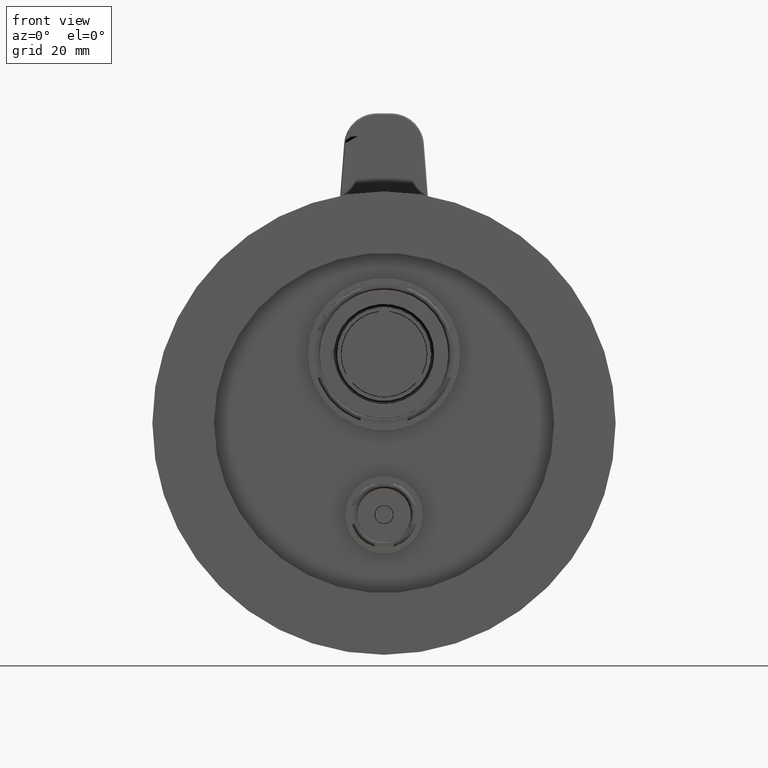
[diagram: clean part render]
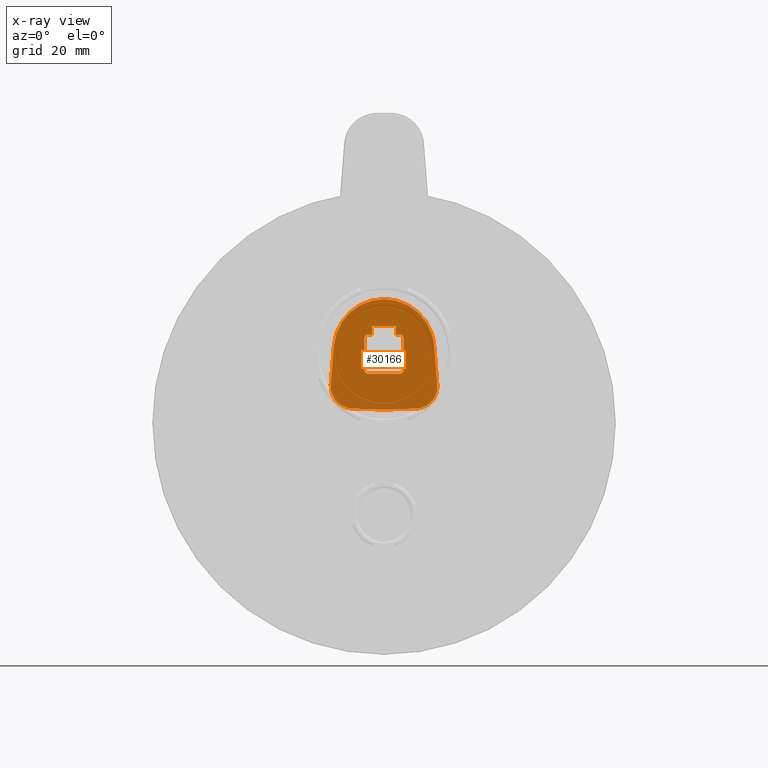
[diagram: x-ray — body ghosted, one internal face saturated and labeled with its STEP entity id]
A machine part, front view, then the same camera in x-ray: the body is ghosted and one INTERNAL B-rep face — a face not visible from any outside direction — is saturated and labeled: STEP entity #30166.
In plain terms, the highlighted planar face has unit normal (0, -1, 0).
Its self-contained STEP definition (entity closure, byte-faithful):
#9139=CARTESIAN_POINT('',(7.310777710361E0,1.104044430836E2,1.968899383270E1));
#9140=CARTESIAN_POINT('',(7.310777710361E0,1.104044430836E2,1.956401287081E1));
#9141=CARTESIAN_POINT('',(7.281243721034E0,1.104044430836E2,1.934358493634E1));
#9142=CARTESIAN_POINT('',(7.152301900542E0,1.104044430836E2,1.897260290926E1));
#9143=CARTESIAN_POINT('',(6.892654506212E0,1.104044430836E2,1.860734549411E1));
#9144=CARTESIAN_POINT('',(6.527397091069E0,1.104044430836E2,1.834769809978E1));
#9145=CARTESIAN_POINT('',(6.156415063983E0,1.104044430836E2,1.821875627929E1));
#9146=CARTESIAN_POINT('',(5.935987129521E0,1.104044430836E2,1.818922228997E1));
#9147=CARTESIAN_POINT('',(5.811006167626E0,1.104044430836E2,1.818922228997E1));
#9149=CARTESIAN_POINT('',(1.228528700637E1,1.104044430891E2,5.158062621633E0));
#9150=CARTESIAN_POINT('',(1.111652637017E1,1.104044430891E2,5.084922251829E0));
#9151=CARTESIAN_POINT('',(8.778221958985E0,1.104044430810E2,4.959541597257E0));
#9152=CARTESIAN_POINT('',(5.267715559833E0,1.104044430842E2,4.834114772629E0));
#9153=CARTESIAN_POINT('',(1.756270763691E0,1.104044430834E2,4.771414104394E0));
#9154=CARTESIAN_POINT('',(-1.756271187701E0,1.104044430835E2,4.771414108495E0));
#9155=CARTESIAN_POINT('',(-5.267715990117E0,1.104044430841E2,4.834114783746E0));
#9156=CARTESIAN_POINT('',(-8.778222418079E0,1.104044430817E2,4.959541618283E0));
#9157=CARTESIAN_POINT('',(-1.111652676881E1,1.104044430876E2,5.084922273515E0));
#9158=CARTESIAN_POINT('',(-1.228528744783E1,1.104044430876E2,5.158062648385E0));
#9160=CARTESIAN_POINT('',(-1.228528744783E1,1.104044430876E2,5.158062648385E0));
#9161=CARTESIAN_POINT('',(-1.241230562792E1,1.104044430876E2,5.166011373453E0));
#9162=CARTESIAN_POINT('',(-1.266568290888E1,1.104044430817E2,5.187839851992E0));
#9163=CARTESIAN_POINT('',(-1.304438886890E1,1.104044430841E2,5.238387145012E0));
#9164=CARTESIAN_POINT('',(-1.341989917635E1,1.104044430834E2,5.306500271857E0));
#9165=CARTESIAN_POINT('',(-1.379158573058E1,1.104044430836E2,5.392023908460E0));
#9166=CARTESIAN_POINT('',(-1.415935398350E1,1.104044430836E2,5.494973555194E0));
#9167=CARTESIAN_POINT('',(-1.452167511406E1,1.104044430836E2,5.614957944166E0));
#9168=CARTESIAN_POINT('',(-1.487762301793E1,1.104044430836E2,5.751654283054E0));
#9169=CARTESIAN_POINT('',(-1.522738558662E1,1.104044430836E2,5.905062603690E0));
#9170=CARTESIAN_POINT('',(-1.556963943877E1,1.104044430836E2,6.074594228108E0));
#9171=CARTESIAN_POINT('',(-1.590342152889E1,1.104044430836E2,6.259785125795E0));
#9172=CARTESIAN_POINT('',(-1.622883418596E1,1.104044430836E2,6.460856924411E0));
#9173=CARTESIAN_POINT('',(-1.654448814292E1,1.104044430836E2,6.677077581184E0));
#9174=CARTESIAN_POINT('',(-1.684930603982E1,1.104044430836E2,6.907601286624E0));
#9175=CARTESIAN_POINT('',(-1.714348518998E1,1.104044430836E2,7.152476146199E0));
#9176=CARTESIAN_POINT('',(-1.742592075289E1,1.104044430836E2,7.410814939538E0));
#9177=CARTESIAN_POINT('',(-1.769560147788E1,1.104044430836E2,7.681634382554E0));
#9178=CARTESIAN_POINT('',(-1.795259816174E1,1.104044430836E2,7.965128582167E0));
#9179=CARTESIAN_POINT('',(-1.819590043207E1,1.104044430836E2,8.260347445357E0));
#9180=CARTESIAN_POINT('',(-1.842458719108E1,1.104044430836E2,8.566033947454E0));
#9181=CARTESIAN_POINT('',(-1.863893640609E1,1.104044430836E2,8.882262612281E0));
#9182=CARTESIAN_POINT('',(-1.883843868560E1,1.104044430836E2,9.208155519336E0));
#9183=CARTESIAN_POINT('',(-1.902237410564E1,1.104044430836E2,9.542593504124E0));
#9184=CARTESIAN_POINT('',(-1.919071153739E1,1.104044430836E2,9.885869619192E0));
#9185=CARTESIAN_POINT('',(-1.934283676149E1,1.104044430836E2,1.023696664017E1));
#9186=CARTESIAN_POINT('',(-1.947813785256E1,1.104044430836E2,1.059433561146E1));
#9187=CARTESIAN_POINT('',(-1.959673170332E1,1.104044430836E2,1.095794926605E1));
#9188=CARTESIAN_POINT('',(-1.969836442170E1,1.104044430836E2,1.132698948311E1));
#9189=CARTESIAN_POINT('',(-1.978261762069E1,1.104044430836E2,1.169998689017E1));
#9190=CARTESIAN_POINT('',(-1.984938167545E1,1.104044430836E2,1.207696043523E1));
#9191=CARTESIAN_POINT('',(-1.989838486288E1,1.104044430836E2,1.245703663489E1));
#9192=CARTESIAN_POINT('',(-1.992945118858E1,1.104044430836E2,1.283848677676E1));
#9193=CARTESIAN_POINT('',(-1.994269554304E1,1.104044430835E2,1.322099097445E1));
#9194=CARTESIAN_POINT('',(-1.993806383588E1,1.104044430840E2,1.360390617575E1));
#9195=CARTESIAN_POINT('',(-1.992309393918E1,1.104044430827E2,1.385810403061E1));
#9196=CARTESIAN_POINT('',(-1.991263066313E1,1.104044430827E2,1.398504355017E1));
#9198=CARTESIAN_POINT('',(-1.991263066313E1,1.104044430827E2,1.398504355017E1));
#9199=CARTESIAN_POINT('',(-1.982431516623E1,1.104044430827E2,1.505647917734E1));
#9200=CARTESIAN_POINT('',(-1.964238861209E1,1.104044430840E2,1.727135600269E1));
#9201=CARTESIAN_POINT('',(-1.935611080226E1,1.104044430833E2,2.078274801571E1));
#9202=CARTESIAN_POINT('',(-1.905019099813E1,1.104044430841E2,2.456417531104E1));
#9203=CARTESIAN_POINT('',(-1.882915444659E1,1.104044430825E2,2.731914376067E1));
#9204=CARTESIAN_POINT('',(-1.871483231831E1,1.104044430825E2,2.875064391208E1));
#9206=CARTESIAN_POINT('',(-1.871483231831E1,1.104044430825E2,2.875064391208E1));
#9207=CARTESIAN_POINT('',(-1.869573724125E1,1.104044430825E2,2.898974552879E1));
#9208=CARTESIAN_POINT('',(-1.864843448158E1,1.104044430841E2,2.946685664676E1));
#9209=CARTESIAN_POINT('',(-1.855014784227E1,1.104044430834E2,3.017980870982E1));
#9210=CARTESIAN_POINT('',(-1.842474479949E1,1.104044430836E2,3.088837399452E1));
#9211=CARTESIAN_POINT('',(-1.827234986552E1,1.104044430836E2,3.159172587130E1));
#9212=CARTESIAN_POINT('',(-1.809322795357E1,1.104044430836E2,3.228846738399E1));
#9213=CARTESIAN_POINT('',(-1.788760107564E1,1.104044430836E2,3.297799171607E1));
#9214=CARTESIAN_POINT('',(-1.765584648953E1,1.104044430836E2,3.365905940699E1));
#9215=CARTESIAN_POINT('',(-1.739815100235E1,1.104044430836E2,3.433097680398E1));
#9216=CARTESIAN_POINT('',(-1.711510344711E1,1.104044430836E2,3.499215570239E1));
#9217=CARTESIAN_POINT('',(-1.680694482894E1,1.104044430836E2,3.564220779726E1));
#9218=CARTESIAN_POINT('',(-1.647433084520E1,1.104044430836E2,3.627976793348E1));
#9219=CARTESIAN_POINT('',(-1.611741945772E1,1.104044430836E2,3.690441298903E1));
#9220=CARTESIAN_POINT('',(-1.573710424099E1,1.104044430836E2,3.751455815456E1));
#9221=CARTESIAN_POINT('',(-1.533361753379E1,1.104044430836E2,3.810996931337E1));
#9222=CARTESIAN_POINT('',(-1.490791329139E1,1.104044430836E2,3.868924701380E1));
#9223=CARTESIAN_POINT('',(-1.446016444833E1,1.104044430836E2,3.925205371869E1));
#9224=CARTESIAN_POINT('',(-1.399165675868E1,1.104044430836E2,3.979678861683E1));
#9225=CARTESIAN_POINT('',(-1.350256739538E1,1.104044430836E2,4.032336890403E1));
#9226=CARTESIAN_POINT('',(-1.299399301303E1,1.104044430836E2,4.083061909416E1));
#9227=CARTESIAN_POINT('',(-1.246600022617E1,1.104044430836E2,4.131836362611E1));
#9228=CARTESIAN_POINT('',(-1.192006535454E1,1.104044430836E2,4.178525877244E1));
#9229=CARTESIAN_POINT('',(-1.135643490558E1,1.104044430836E2,4.223117957397E1));
#9230=CARTESIAN_POINT('',(-1.077663759558E1,1.104044430836E2,4.265492117915E1));
#9231=CARTESIAN_POINT('',(-1.018085705857E1,1.104044430836E2,4.305627603410E1));
#9232=CARTESIAN_POINT('',(-9.570741351314E0,1.104044430836E2,4.343417143115E1));
#9233=CARTESIAN_POINT('',(-8.946476147615E0,1.104044430836E2,4.378857254286E1));
#9234=CARTESIAN_POINT('',(-8.309414034E0,1.104044430836E2,4.411871190352E1));
#9235=CARTESIAN_POINT('',(-7.659684614861E0,1.104044430836E2,4.442444529864E1));
#9236=CARTESIAN_POINT('',(-6.999171276288E0,1.104044430836E2,4.470491780266E1));
#9237=CARTESIAN_POINT('',(-6.328325362533E0,1.104044430836E2,4.495999807999E1));
#9238=CARTESIAN_POINT('',(-5.648599021092E0,1.104044430836E2,4.518913224862E1));
#9239=CARTESIAN_POINT('',(-4.960322421675E0,1.104044430836E2,4.539213883046E1));
#9240=CARTESIAN_POINT('',(-4.265168291137E0,1.104044430836E2,4.556857413361E1));
#9241=CARTESIAN_POINT('',(-3.563728367710E0,1.104044430836E2,4.571834258773E1));
#9242=CARTESIAN_POINT('',(-2.857293301232E0,1.104044430836E2,4.584115927099E1));
#9243=CARTESIAN_POINT('',(-2.146407415210E0,1.104044430836E2,4.593685968562E1));
#9244=CARTESIAN_POINT('',(-1.432567896014E0,1.104044430836E2,4.600529148949E1));
#9245=CARTESIAN_POINT('',(-7.167446940555E-1,1.104044430836E2,
4.604640962900E1));
#9246=CARTESIAN_POINT('',(-6.440742626096E-6,1.104044430836E2,
4.606014104768E1));
#9247=CARTESIAN_POINT('',(7.167287600472E-1,1.104044430836E2,4.604641031793E1));
#9248=CARTESIAN_POINT('',(1.432552159625E0,1.104044430836E2,4.600529281251E1));
#9249=CARTESIAN_POINT('',(2.146390703411E0,1.104044430836E2,4.593686169417E1));
#9250=CARTESIAN_POINT('',(2.857280570310E0,1.104044430836E2,4.584116125341E1));
#9251=CARTESIAN_POINT('',(3.563716601265E0,1.104044430836E2,4.571834487088E1));
#9252=CARTESIAN_POINT('',(4.265159682842E0,1.104044430836E2,4.556857614731E1));
#9253=CARTESIAN_POINT('',(4.960313729394E0,1.104044430836E2,4.539214120849E1));
#9254=CARTESIAN_POINT('',(5.648592694791E0,1.104044430836E2,4.518913426831E1));
#9255=CARTESIAN_POINT('',(6.328319336613E0,1.104044430836E2,4.496000030611E1));
#9256=CARTESIAN_POINT('',(6.999166749469E0,1.104044430836E2,4.470491970092E1));
#9257=CARTESIAN_POINT('',(7.659679408295E0,1.104044430836E2,4.442444766127E1));
#9258=CARTESIAN_POINT('',(8.309409644337E0,1.104044430836E2,4.411871407032E1));
#9259=CARTESIAN_POINT('',(8.946472416287E0,1.104044430836E2,4.378857454116E1));
#9260=CARTESIAN_POINT('',(9.570738556552E0,1.104044430836E2,4.343417307284E1));
#9261=CARTESIAN_POINT('',(1.018085414877E1,1.104044430836E2,4.305627792137E1));
#9262=CARTESIAN_POINT('',(1.077663455460E1,1.104044430836E2,4.265492331547E1));
#9263=CARTESIAN_POINT('',(1.135643234479E1,1.104044430836E2,4.223118143739E1));
#9264=CARTESIAN_POINT('',(1.192006359880E1,1.104044430836E2,4.178526010717E1));
#9265=CARTESIAN_POINT('',(1.246599904418E1,1.104044430836E2,4.131836462638E1));
#9266=CARTESIAN_POINT('',(1.299399174430E1,1.104044430836E2,4.083062034694E1));
#9267=CARTESIAN_POINT('',(1.350256614281E1,1.104044430836E2,4.032337023452E1));
#9268=CARTESIAN_POINT('',(1.399165543995E1,1.104044430836E2,3.979679009832E1));
#9269=CARTESIAN_POINT('',(1.446016312656E1,1.104044430836E2,3.925205530415E1));
#9270=CARTESIAN_POINT('',(1.490791188115E1,1.104044430836E2,3.868924886930E1));
#9271=CARTESIAN_POINT('',(1.533361626249E1,1.104044430836E2,3.810997113535E1));
#9272=CARTESIAN_POINT('',(1.573710324007E1,1.104044430836E2,3.751455968804E1));
#9273=CARTESIAN_POINT('',(1.611741863839E1,1.104044430836E2,3.690441432468E1));
#9274=CARTESIAN_POINT('',(1.647433012483E1,1.104044430836E2,3.627976931401E1));
#9275=CARTESIAN_POINT('',(1.680694402183E1,1.104044430836E2,3.564220959566E1));
#9276=CARTESIAN_POINT('',(1.711510258714E1,1.104044430836E2,3.499215776843E1));
#9277=CARTESIAN_POINT('',(1.739815007640E1,1.104044430836E2,3.433097910519E1));
#9278=CARTESIAN_POINT('',(1.765584580513E1,1.104044430836E2,3.365906125290E1));
#9279=CARTESIAN_POINT('',(1.788760050222E1,1.104044430836E2,3.297799349795E1));
#9280=CARTESIAN_POINT('',(1.809322762521E1,1.104044430836E2,3.228846857839E1));
#9281=CARTESIAN_POINT('',(1.827234957891E1,1.104044430836E2,3.159172711939E1));
#9282=CARTESIAN_POINT('',(1.842474476345E1,1.104044430836E2,3.088837421121E1));
#9283=CARTESIAN_POINT('',(1.855014782499E1,1.104044430834E2,3.017980880681E1));
#9284=CARTESIAN_POINT('',(1.864843452347E1,1.104044430841E2,2.946685630424E1));
#9285=CARTESIAN_POINT('',(1.869573725449E1,1.104044430825E2,2.898974537112E1));
#9286=CARTESIAN_POINT('',(1.871483231870E1,1.104044430825E2,2.875064391531E1));
#9288=CARTESIAN_POINT('',(1.871483231870E1,1.104044430825E2,2.875064391531E1));
#9289=CARTESIAN_POINT('',(1.882915447913E1,1.104044430825E2,2.731914336138E1));
#9290=CARTESIAN_POINT('',(1.905019109346E1,1.104044430841E2,2.456417413288E1));
#9291=CARTESIAN_POINT('',(1.935611098756E1,1.104044430834E2,2.078274573881E1));
#9292=CARTESIAN_POINT('',(1.964238888937E1,1.104044430838E2,1.727135262041E1));
#9293=CARTESIAN_POINT('',(1.982431544255E1,1.104044430833E2,1.505647582538E1));
#9294=CARTESIAN_POINT('',(1.991263096162E1,1.104044430833E2,1.398503993734E1));
#9296=CARTESIAN_POINT('',(1.991263096162E1,1.104044430833E2,1.398503993734E1));
#9297=CARTESIAN_POINT('',(1.992309805115E1,1.104044430833E2,1.385805415405E1));
#9298=CARTESIAN_POINT('',(1.993807880621E1,1.104044430837E2,1.360380126939E1));
#9299=CARTESIAN_POINT('',(1.994271610270E1,1.104044430835E2,1.322087761902E1));
#9300=CARTESIAN_POINT('',(1.992947045462E1,1.104044430836E2,1.283855684519E1));
#9301=CARTESIAN_POINT('',(1.989834902256E1,1.104044430836E2,1.245697561401E1));
#9302=CARTESIAN_POINT('',(1.984933369042E1,1.104044430836E2,1.207706626117E1));
#9303=CARTESIAN_POINT('',(1.978268948959E1,1.104044430836E2,1.170053223887E1));
#9304=CARTESIAN_POINT('',(1.969849348984E1,1.104044430836E2,1.132733098611E1));
#9305=CARTESIAN_POINT('',(1.959697286621E1,1.104044430836E2,1.095845758472E1));
#9306=CARTESIAN_POINT('',(1.947849017664E1,1.104044430836E2,1.059520151654E1));
#9307=CARTESIAN_POINT('',(1.934295772889E1,1.104044430836E2,1.023740815561E1));
#9308=CARTESIAN_POINT('',(1.919085986073E1,1.104044430836E2,9.886444847115E0));
#9309=CARTESIAN_POINT('',(1.902273692483E1,1.104044430836E2,9.543423789454E0));
#9310=CARTESIAN_POINT('',(1.883858351646E1,1.104044430836E2,9.208248255270E0));
#9311=CARTESIAN_POINT('',(1.863913847914E1,1.104044430836E2,8.882297909284E0));
#9312=CARTESIAN_POINT('',(1.842483254977E1,1.104044430836E2,8.566291328444E0));
#9313=CARTESIAN_POINT('',(1.819567522409E1,1.104044430836E2,8.260208931770E0));
#9314=CARTESIAN_POINT('',(1.795260708417E1,1.104044430836E2,7.965317798659E0));
#9315=CARTESIAN_POINT('',(1.769577881821E1,1.104044430836E2,7.681848628730E0));
#9316=CARTESIAN_POINT('',(1.742552465609E1,1.104044430836E2,7.410344408970E0));
#9317=CARTESIAN_POINT('',(1.714316637325E1,1.104044430836E2,7.152083956797E0));
#9318=CARTESIAN_POINT('',(1.684886480496E1,1.104044430836E2,6.907147842056E0));
#9319=CARTESIAN_POINT('',(1.654332799621E1,1.104044430836E2,6.676272663025E0));
#9320=CARTESIAN_POINT('',(1.622793208192E1,1.104044430836E2,6.460406385659E0));
#9321=CARTESIAN_POINT('',(1.590266873100E1,1.104044430836E2,6.259428835878E0));
#9322=CARTESIAN_POINT('',(1.556856076588E1,1.104044430836E2,6.073983681486E0));
#9323=CARTESIAN_POINT('',(1.522673928218E1,1.104044430836E2,5.904671452826E0));
#9324=CARTESIAN_POINT('',(1.487706358979E1,1.104044430836E2,5.751375491204E0));
#9325=CARTESIAN_POINT('',(1.452086310943E1,1.104044430836E2,5.614681949062E0));
#9326=CARTESIAN_POINT('',(1.415906313941E1,1.104044430836E2,5.494949702174E0));
#9327=CARTESIAN_POINT('',(1.379159628238E1,1.104044430836E2,5.392085500434E0));
#9328=CARTESIAN_POINT('',(1.341994658011E1,1.104044430834E2,5.306506560498E0));
#9329=CARTESIAN_POINT('',(1.304475169541E1,1.104044430843E2,5.238412390524E0));
#9330=CARTESIAN_POINT('',(1.266603136223E1,1.104044430810E2,5.187858595443E0));
#9331=CARTESIAN_POINT('',(1.241245474072E1,1.104044430891E2,5.166020705460E0));
#9332=CARTESIAN_POINT('',(1.228528700637E1,1.104044430891E2,5.158062621633E0));
#9334=DIRECTION('',(1.E0,0.E0,0.E0));
#9335=VECTOR('',#9334,9.E0);
#9336=CARTESIAN_POINT('',(-4.499999999673E0,1.104044430836E2,3.6E1));
#9337=LINE('',#9336,#9335);
#9338=DIRECTION('',(0.E0,0.E0,1.E0));
#9339=VECTOR('',#9338,3.189222289966E0);
#9340=CARTESIAN_POINT('',(-4.499999999673E0,1.104044430836E2,3.281077771003E1));
#9341=LINE('',#9340,#9339);
#9342=DIRECTION('',(0.E0,0.E0,-1.E0));
#9343=VECTOR('',#9342,1.162201233460E1);
#9344=CARTESIAN_POINT('',(7.310777710361E0,1.104044430836E2,3.131100616730E1));
#9345=LINE('',#9344,#9343);
#9346=DIRECTION('',(0.E0,0.E0,1.E0));
#9347=VECTOR('',#9346,3.189222289966E0);
#9348=CARTESIAN_POINT('',(4.500000000327E0,1.104044430836E2,3.281077771003E1));
#9349=LINE('',#9348,#9347);
#11548=CARTESIAN_POINT('',(-1.991263066313E1,1.104044430827E2,
1.398504355017E1));
#11568=CARTESIAN_POINT('',(1.991263096162E1,1.104044430833E2,1.398503993734E1));
#11750=DIRECTION('',(1.E0,0.E0,0.E0));
#11751=VECTOR('',#11750,1.311006167300E0);
#11752=CARTESIAN_POINT('',(4.500000000327E0,1.104044430836E2,3.281077771003E1));
#11753=LINE('',#11752,#11751);
#11762=DIRECTION('',(1.E0,-1.083965512113E-14,0.E0));
#11763=VECTOR('',#11762,1.311006167300E0);
#11764=CARTESIAN_POINT('',(-5.811006166973E0,1.104044430836E2,
3.281077771003E1));
#11765=LINE('',#11764,#11763);
#11774=CARTESIAN_POINT('',(5.811006167626E0,1.104044430836E2,3.281077771003E1));
#11775=CARTESIAN_POINT('',(5.935987129521E0,1.104044430836E2,3.281077771003E1));
#11776=CARTESIAN_POINT('',(6.156415063983E0,1.104044430836E2,3.278124372071E1));
#11777=CARTESIAN_POINT('',(6.527397091069E0,1.104044430836E2,3.265230190022E1));
#11778=CARTESIAN_POINT('',(6.892654506212E0,1.104044430836E2,3.239265450589E1));
#11779=CARTESIAN_POINT('',(7.152301900542E0,1.104044430836E2,3.202739709074E1));
#11780=CARTESIAN_POINT('',(7.281243721034E0,1.104044430836E2,3.165641506366E1));
#11781=CARTESIAN_POINT('',(7.310777710361E0,1.104044430836E2,3.143598712919E1));
#11782=CARTESIAN_POINT('',(7.310777710361E0,1.104044430836E2,3.131100616730E1));
#11792=CARTESIAN_POINT('',(-7.310777709708E0,1.104044430836E2,
3.131100616730E1));
#11793=CARTESIAN_POINT('',(-7.310777709708E0,1.104044430836E2,
3.143598712919E1));
#11794=CARTESIAN_POINT('',(-7.281243720380E0,1.104044430836E2,
3.165641506366E1));
#11795=CARTESIAN_POINT('',(-7.152301899889E0,1.104044430836E2,
3.202739709074E1));
#11796=CARTESIAN_POINT('',(-6.892654505559E0,1.104044430836E2,
3.239265450589E1));
#11797=CARTESIAN_POINT('',(-6.527397090416E0,1.104044430836E2,
3.265230190022E1));
#11798=CARTESIAN_POINT('',(-6.156415063330E0,1.104044430836E2,
3.278124372071E1));
#11799=CARTESIAN_POINT('',(-5.935987128868E0,1.104044430836E2,
3.281077771003E1));
#11800=CARTESIAN_POINT('',(-5.811006166973E0,1.104044430836E2,
3.281077771003E1));
#11806=DIRECTION('',(0.E0,0.E0,1.E0));
#11807=VECTOR('',#11806,1.162201233460E1);
#11808=CARTESIAN_POINT('',(-7.310777709708E0,1.104044430836E2,
1.968899383270E1));
#11809=LINE('',#11808,#11807);
#11814=CARTESIAN_POINT('',(-5.811006166973E0,1.104044430836E2,
1.818922228997E1));
#11815=CARTESIAN_POINT('',(-5.935987128868E0,1.104044430836E2,
1.818922228997E1));
#11816=CARTESIAN_POINT('',(-6.156415063330E0,1.104044430836E2,
1.821875627929E1));
#11817=CARTESIAN_POINT('',(-6.527397090416E0,1.104044430836E2,
1.834769809978E1));
#11818=CARTESIAN_POINT('',(-6.892654505559E0,1.104044430836E2,
1.860734549411E1));
#11819=CARTESIAN_POINT('',(-7.152301899889E0,1.104044430836E2,
1.897260290926E1));
#11820=CARTESIAN_POINT('',(-7.281243720380E0,1.104044430836E2,
1.934358493634E1));
#11821=CARTESIAN_POINT('',(-7.310777709708E0,1.104044430836E2,
1.956401287081E1));
#11822=CARTESIAN_POINT('',(-7.310777709708E0,1.104044430836E2,
1.968899383270E1));
#11828=DIRECTION('',(-1.E0,0.E0,0.E0));
#11829=VECTOR('',#11828,1.162201233460E1);
#11830=CARTESIAN_POINT('',(5.811006167626E0,1.104044430836E2,1.818922228997E1));
#11831=LINE('',#11830,#11829);
#17394=VERTEX_POINT('',#9139);
#17395=VERTEX_POINT('',#9147);
#17396=VERTEX_POINT('',#11814);
#17397=VERTEX_POINT('',#11822);
#17398=VERTEX_POINT('',#11774);
#17399=VERTEX_POINT('',#11782);
#17400=VERTEX_POINT('',#11792);
#17401=VERTEX_POINT('',#11800);
#17424=CARTESIAN_POINT('',(4.500000000327E0,1.104044430836E2,3.281077771003E1));
#17425=VERTEX_POINT('',#17424);
#17426=CARTESIAN_POINT('',(-4.499999999673E0,1.104044430836E2,
3.281077771003E1));
#17427=VERTEX_POINT('',#17426);
#17428=CARTESIAN_POINT('',(4.500000000327E0,1.104044430836E2,3.6E1));
#17429=VERTEX_POINT('',#17428);
#17430=CARTESIAN_POINT('',(-4.499999999673E0,1.104044430836E2,3.6E1));
#17431=VERTEX_POINT('',#17430);
#17470=CARTESIAN_POINT('',(1.228528700637E1,1.104044430891E2,5.158062621633E0));
#17471=VERTEX_POINT('',#17470);
#17472=VERTEX_POINT('',#11568);
#17473=VERTEX_POINT('',#11548);
#17474=CARTESIAN_POINT('',(-1.228528744783E1,1.104044430876E2,
5.158062648385E0));
#17475=VERTEX_POINT('',#17474);
#17476=CARTESIAN_POINT('',(-1.871483231831E1,1.104044430825E2,
2.875064391208E1));
#17477=VERTEX_POINT('',#17476);
#17478=CARTESIAN_POINT('',(1.871483231870E1,1.104044430825E2,2.875064391531E1));
#17479=VERTEX_POINT('',#17478);
#30122=CARTESIAN_POINT('',(3.265612129158E-10,1.104044430836E2,2.55E1));
#30123=DIRECTION('',(0.E0,-1.E0,0.E0));
#30124=DIRECTION('',(0.E0,0.E0,-1.E0));
#30125=AXIS2_PLACEMENT_3D('',#30122,#30123,#30124);
#30126=PLANE('',#30125);
#30128=ORIENTED_EDGE('',*,*,#30127,.T.);
#30130=ORIENTED_EDGE('',*,*,#30129,.T.);
#30132=ORIENTED_EDGE('',*,*,#30131,.T.);
#30134=ORIENTED_EDGE('',*,*,#30133,.T.);
#30136=ORIENTED_EDGE('',*,*,#30135,.T.);
#30138=ORIENTED_EDGE('',*,*,#30137,.T.);
#30139=EDGE_LOOP('',(#30128,#30130,#30132,#30134,#30136,#30138));
#30140=FACE_OUTER_BOUND('',#30139,.F.);
#30142=ORIENTED_EDGE('',*,*,#30141,.F.);
#30144=ORIENTED_EDGE('',*,*,#30143,.F.);
#30146=ORIENTED_EDGE('',*,*,#30145,.F.);
#30148=ORIENTED_EDGE('',*,*,#30147,.F.);
#30150=ORIENTED_EDGE('',*,*,#30149,.F.);
#30152=ORIENTED_EDGE('',*,*,#30151,.F.);
#30154=ORIENTED_EDGE('',*,*,#30153,.F.);
#30155=ORIENTED_EDGE('',*,*,#30105,.F.);
#30157=ORIENTED_EDGE('',*,*,#30156,.F.);
#30159=ORIENTED_EDGE('',*,*,#30158,.F.);
#30161=ORIENTED_EDGE('',*,*,#30160,.F.);
#30163=ORIENTED_EDGE('',*,*,#30162,.T.);
#30164=EDGE_LOOP('',(#30142,#30144,#30146,#30148,#30150,#30152,#30154,#30155,
#30157,#30159,#30161,#30163));
#30165=FACE_BOUND('',#30164,.F.);
#30166=ADVANCED_FACE('',(#30140,#30165),#30126,.T.);
#9148=B_SPLINE_CURVE_WITH_KNOTS('',3,(#9139,#9140,#9141,#9142,#9143,#9144,#9145,
#9146,#9147),.UNSPECIFIED.,.F.,.F.,(4,1,1,1,1,1,4),(0.E0,1.25E-1,2.5E-1,5.E-1,
7.5E-1,8.75E-1,1.E0),.UNSPECIFIED.);
#9159=B_SPLINE_CURVE_WITH_KNOTS('',3,(#9149,#9150,#9151,#9152,#9153,#9154,#9155,
#9156,#9157,#9158),.UNSPECIFIED.,.F.,.F.,(4,1,1,1,1,1,1,4),(0.E0,
1.428571428571E-1,2.857142857143E-1,4.285714285714E-1,5.714285714286E-1,
7.142857142857E-1,8.571428571429E-1,1.E0),.UNSPECIFIED.);
#9197=B_SPLINE_CURVE_WITH_KNOTS('',3,(#9160,#9161,#9162,#9163,#9164,#9165,#9166,
#9167,#9168,#9169,#9170,#9171,#9172,#9173,#9174,#9175,#9176,#9177,#9178,#9179,
#9180,#9181,#9182,#9183,#9184,#9185,#9186,#9187,#9188,#9189,#9190,#9191,#9192,
#9193,#9194,#9195,#9196),.UNSPECIFIED.,.F.,.F.,(4,1,1,1,1,1,1,1,1,1,1,1,1,1,1,1,
1,1,1,1,1,1,1,1,1,1,1,1,1,1,1,1,1,1,4),(0.E0,2.941176470588E-2,
5.882352941176E-2,8.823529411765E-2,1.176470588235E-1,1.470588235294E-1,
1.764705882353E-1,2.058823529412E-1,2.352941176471E-1,2.647058823529E-1,
2.941176470588E-1,3.235294117647E-1,3.529411764706E-1,3.823529411765E-1,
4.117647058824E-1,4.411764705882E-1,4.705882352941E-1,5.E-1,5.294117647059E-1,
5.588235294118E-1,5.882352941176E-1,6.176470588235E-1,6.470588235294E-1,
6.764705882353E-1,7.058823529412E-1,7.352941176471E-1,7.647058823529E-1,
7.941176470588E-1,8.235294117647E-1,8.529411764706E-1,8.823529411765E-1,
9.117647058824E-1,9.411764705882E-1,9.705882352941E-1,1.E0),.UNSPECIFIED.);
#9205=B_SPLINE_CURVE_WITH_KNOTS('',3,(#9198,#9199,#9200,#9201,#9202,#9203,
#9204),.UNSPECIFIED.,.F.,.F.,(4,1,1,1,4),(0.E0,2.5E-1,5.E-1,7.5E-1,1.E0),
.UNSPECIFIED.);
#9287=B_SPLINE_CURVE_WITH_KNOTS('',3,(#9206,#9207,#9208,#9209,#9210,#9211,#9212,
#9213,#9214,#9215,#9216,#9217,#9218,#9219,#9220,#9221,#9222,#9223,#9224,#9225,
#9226,#9227,#9228,#9229,#9230,#9231,#9232,#9233,#9234,#9235,#9236,#9237,#9238,
#9239,#9240,#9241,#9242,#9243,#9244,#9245,#9246,#9247,#9248,#9249,#9250,#9251,
#9252,#9253,#9254,#9255,#9256,#9257,#9258,#9259,#9260,#9261,#9262,#9263,#9264,
#9265,#9266,#9267,#9268,#9269,#9270,#9271,#9272,#9273,#9274,#9275,#9276,#9277,
#9278,#9279,#9280,#9281,#9282,#9283,#9284,#9285,#9286),.UNSPECIFIED.,.F.,.F.,(4,
1,1,1,1,1,1,1,1,1,1,1,1,1,1,1,1,1,1,1,1,1,1,1,1,1,1,1,1,1,1,1,1,1,1,1,1,1,1,1,1,
1,1,1,1,1,1,1,1,1,1,1,1,1,1,1,1,1,1,1,1,1,1,1,1,1,1,1,1,1,1,1,1,1,1,1,1,1,4),(
0.E0,1.282051282051E-2,2.564102564103E-2,3.846153846154E-2,5.128205128205E-2,
6.410256410256E-2,7.692307692308E-2,8.974358974359E-2,1.025641025641E-1,
1.153846153846E-1,1.282051282051E-1,1.410256410256E-1,1.538461538462E-1,
1.666666666667E-1,1.794871794872E-1,1.923076923077E-1,2.051282051282E-1,
2.179487179487E-1,2.307692307692E-1,2.435897435897E-1,2.564102564103E-1,
2.692307692308E-1,2.820512820513E-1,2.948717948718E-1,3.076923076923E-1,
3.205128205128E-1,3.333333333333E-1,3.461538461538E-1,3.589743589744E-1,
3.717948717949E-1,3.846153846154E-1,3.974358974359E-1,4.102564102564E-1,
4.230769230769E-1,4.358974358974E-1,4.487179487179E-1,4.615384615385E-1,
4.743589743590E-1,4.871794871795E-1,5.E-1,5.128205128205E-1,5.256410256410E-1,
5.384615384615E-1,5.512820512821E-1,5.641025641026E-1,5.769230769231E-1,
5.897435897436E-1,6.025641025641E-1,6.153846153846E-1,6.282051282051E-1,
6.410256410256E-1,6.538461538462E-1,6.666666666667E-1,6.794871794872E-1,
6.923076923077E-1,7.051282051282E-1,7.179487179487E-1,7.307692307692E-1,
7.435897435897E-1,7.564102564103E-1,7.692307692308E-1,7.820512820513E-1,
7.948717948718E-1,8.076923076923E-1,8.205128205128E-1,8.333333333333E-1,
8.461538461538E-1,8.589743589744E-1,8.717948717949E-1,8.846153846154E-1,
8.974358974359E-1,9.102564102564E-1,9.230769230769E-1,9.358974358974E-1,
9.487179487179E-1,9.615384615385E-1,9.743589743590E-1,9.871794871795E-1,1.E0),
.UNSPECIFIED.);
#9295=B_SPLINE_CURVE_WITH_KNOTS('',3,(#9288,#9289,#9290,#9291,#9292,#9293,
#9294),.UNSPECIFIED.,.F.,.F.,(4,1,1,1,4),(0.E0,2.5E-1,5.E-1,7.5E-1,1.E0),
.UNSPECIFIED.);
#9333=B_SPLINE_CURVE_WITH_KNOTS('',3,(#9296,#9297,#9298,#9299,#9300,#9301,#9302,
#9303,#9304,#9305,#9306,#9307,#9308,#9309,#9310,#9311,#9312,#9313,#9314,#9315,
#9316,#9317,#9318,#9319,#9320,#9321,#9322,#9323,#9324,#9325,#9326,#9327,#9328,
#9329,#9330,#9331,#9332),.UNSPECIFIED.,.F.,.F.,(4,1,1,1,1,1,1,1,1,1,1,1,1,1,1,1,
1,1,1,1,1,1,1,1,1,1,1,1,1,1,1,1,1,1,4),(0.E0,2.941176470588E-2,
5.882352941176E-2,8.823529411765E-2,1.176470588235E-1,1.470588235294E-1,
1.764705882353E-1,2.058823529412E-1,2.352941176471E-1,2.647058823529E-1,
2.941176470588E-1,3.235294117647E-1,3.529411764706E-1,3.823529411765E-1,
4.117647058824E-1,4.411764705882E-1,4.705882352941E-1,5.E-1,5.294117647059E-1,
5.588235294118E-1,5.882352941176E-1,6.176470588235E-1,6.470588235294E-1,
6.764705882353E-1,7.058823529412E-1,7.352941176471E-1,7.647058823529E-1,
7.941176470588E-1,8.235294117647E-1,8.529411764706E-1,8.823529411765E-1,
9.117647058824E-1,9.411764705882E-1,9.705882352941E-1,1.E0),.UNSPECIFIED.);
#11783=B_SPLINE_CURVE_WITH_KNOTS('',3,(#11774,#11775,#11776,#11777,#11778,
#11779,#11780,#11781,#11782),.UNSPECIFIED.,.F.,.F.,(4,1,1,1,1,1,4),(0.E0,
1.25E-1,2.5E-1,5.E-1,7.5E-1,8.75E-1,1.E0),.UNSPECIFIED.);
#11801=B_SPLINE_CURVE_WITH_KNOTS('',3,(#11792,#11793,#11794,#11795,#11796,
#11797,#11798,#11799,#11800),.UNSPECIFIED.,.F.,.F.,(4,1,1,1,1,1,4),(0.E0,
1.25E-1,2.5E-1,5.E-1,7.5E-1,8.75E-1,1.E0),.UNSPECIFIED.);
#11823=B_SPLINE_CURVE_WITH_KNOTS('',3,(#11814,#11815,#11816,#11817,#11818,
#11819,#11820,#11821,#11822),.UNSPECIFIED.,.F.,.F.,(4,1,1,1,1,1,4),(0.E0,
1.25E-1,2.5E-1,5.E-1,7.5E-1,8.75E-1,1.E0),.UNSPECIFIED.);
#30105=EDGE_CURVE('',#17394,#17395,#9148,.T.);
#30127=EDGE_CURVE('',#17471,#17475,#9159,.T.);
#30129=EDGE_CURVE('',#17475,#17473,#9197,.T.);
#30131=EDGE_CURVE('',#17473,#17477,#9205,.T.);
#30133=EDGE_CURVE('',#17477,#17479,#9287,.T.);
#30135=EDGE_CURVE('',#17479,#17472,#9295,.T.);
#30137=EDGE_CURVE('',#17472,#17471,#9333,.T.);
#30141=EDGE_CURVE('',#17431,#17429,#9337,.T.);
#30143=EDGE_CURVE('',#17427,#17431,#9341,.T.);
#30145=EDGE_CURVE('',#17401,#17427,#11765,.T.);
#30147=EDGE_CURVE('',#17400,#17401,#11801,.T.);
#30149=EDGE_CURVE('',#17397,#17400,#11809,.T.);
#30151=EDGE_CURVE('',#17396,#17397,#11823,.T.);
#30153=EDGE_CURVE('',#17395,#17396,#11831,.T.);
#30156=EDGE_CURVE('',#17399,#17394,#9345,.T.);
#30158=EDGE_CURVE('',#17398,#17399,#11783,.T.);
#30160=EDGE_CURVE('',#17425,#17398,#11753,.T.);
#30162=EDGE_CURVE('',#17425,#17429,#9349,.T.);